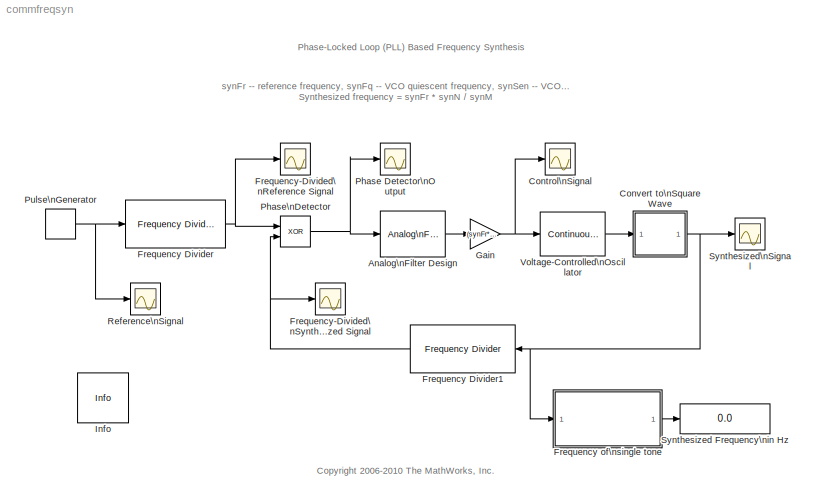
MODEL commfreqsyn
KIND model
CONFIG PreLoadFcn = synM = 3;    % frequency division ratio\nsynN = 10;   % frequency division ratio\nsynFr = 30e6;   % reference frequency\nsynFq = synFr;       % quiescent frequency\nsynSen = 40e6;   % VCO sensitivity
BLOCK [Reference] Analog\nFilter Design  REF=dsparch4/Analog\nFilter Design
  N = 1
  Ports = [1, 1]
  Rp = 2
  Rs = 40
  SID = 1
  SourceBlock = dsparch4/Analog\nFilter Design
  SourceType = Analog Filter Design
  Whi = 80
  Wlo = synFr/synM/10
  filttype = Lowpass
  method = Butterworth
BLOCK [Scope] Control\nSignal
  DataFormat = StructureWithTime
  Floating = off
  LimitDataPoints = off
  NumInputPorts = 1
  Ports = [1]
  SID = 2
  SampleTime = 0
  SaveName = ScopeData1
  ShowLegends = off
  TimeRange = 5e-005
  YMax = 2.5
  YMin = 0
  ZoomMode = xonly
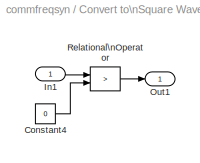
BLOCK [SubSystem] Convert to\nSquare Wave
  FunctionWithSeparateData = off
  MaskHideContents = off
  MinAlgLoopOccurrences = off
  Opaque = off
  Ports = [1, 1]
  PropExecContextOutsideSubsystem = off
  RTWSystemCode = Auto
  RequestExecContextInheritance = off
  SID = 3
BLOCK [Constant] Convert to\nSquare Wave/Constant4
  SID = 5
  Value = 0
BLOCK [Inport] Convert to\nSquare Wave/In1
  IconDisplay = Port number
  SID = 4
BLOCK [Outport] Convert to\nSquare Wave/Out1
  IconDisplay = Port number
  SID = 7
BLOCK [RelationalOperator] Convert to\nSquare Wave/Relational\nOperator
  Operator = >
  Ports = [2, 1]
  SID = 6
BLOCK [Reference] Frequency Divider  REF=commblksprivate/Frequency Divider
  Ports = [1, 1]
  SID = 8
  SourceBlock = commblksprivate/Frequency Divider
  SourceType = Frequency Divider
  n = synM
BLOCK [Reference] Frequency Divider1  REF=commblksprivate/Frequency Divider
  Ports = [1, 1]
  SID = 9
  SourceBlock = commblksprivate/Frequency Divider
  SourceType = Frequency Divider
  n = synN
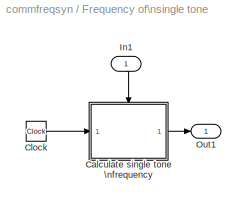
BLOCK [SubSystem] Frequency of\nsingle tone
  FunctionWithSeparateData = off
  MaskDisplay = disp('Single Tone\\nFrequency Estimator');
  MaskHideContents = off
  MaskIconFrame = on
  MaskIconOpaque = on
  MaskIconRotate = none
  MaskIconUnits = autoscale
  MaskPortRotate = default
  MinAlgLoopOccurrences = off
  Opaque = off
  Ports = [1, 1]
  PropExecContextOutsideSubsystem = off
  RTWSystemCode = Auto
  RequestExecContextInheritance = off
  SID = 10
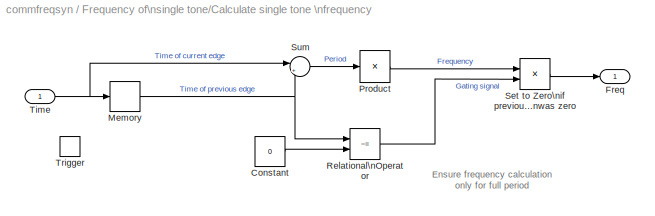
BLOCK [SubSystem] Frequency of\nsingle tone/Calculate single tone \nfrequency
  FunctionWithSeparateData = off
  MaskHideContents = off
  MinAlgLoopOccurrences = off
  Opaque = off
  Ports = [1, 1, 0, 1]
  PropExecContextOutsideSubsystem = off
  RTWSystemCode = Auto
  RequestExecContextInheritance = off
  SID = 12
  TreatAsAtomicUnit = on
BLOCK [Constant] Frequency of\nsingle tone/Calculate single tone \nfrequency/Constant
  SID = 15
  Value = 0
BLOCK [Outport] Frequency of\nsingle tone/Calculate single tone \nfrequency/Freq
  IconDisplay = Port number
  InitialOutput = 0
  SID = 21
BLOCK [Memory] Frequency of\nsingle tone/Calculate single tone \nfrequency/Memory
  InheritSampleTime = on
  SID = 16
BLOCK [Product] Frequency of\nsingle tone/Calculate single tone \nfrequency/Product
  Inputs = /
  Ports = [1, 1]
  RndMeth = Floor
  SID = 17
BLOCK [RelationalOperator] Frequency of\nsingle tone/Calculate single tone \nfrequency/Relational\nOperator
  Operator = ~=
  Ports = [2, 1]
  SID = 18
BLOCK [Product] Frequency of\nsingle tone/Calculate single tone \nfrequency/Set to Zero\nif previous time\nwas zero
  Ports = [2, 1]
  RndMeth = Floor
  SID = 19
BLOCK [Sum] Frequency of\nsingle tone/Calculate single tone \nfrequency/Sum
  IconShape = round
  Inputs = |+-
  Ports = [2, 1]
  SID = 20
BLOCK [Inport] Frequency of\nsingle tone/Calculate single tone \nfrequency/Time
  IconDisplay = Port number
  SID = 13
BLOCK [TriggerPort] Frequency of\nsingle tone/Calculate single tone \nfrequency/Trigger
  Ports = []
  SID = 14
  ZeroCross = off
BLOCK [Clock] Frequency of\nsingle tone/Clock
  Decimation = 1
  SID = 22
BLOCK [Inport] Frequency of\nsingle tone/In1
  IconDisplay = Port number
  SID = 11
BLOCK [Outport] Frequency of\nsingle tone/Out1
  IconDisplay = Port number
  SID = 23
BLOCK [Scope] Frequency-Divided\nReference Signal
  DataFormat = StructureWithTime
  Floating = off
  NumInputPorts = 1
  Ports = [1]
  SID = 24
  SampleTime = 0
  SaveName = ScopeData5
  ShowLegends = off
  TimeRange = 2e-007
  YMax = 2
  YMin = -1
BLOCK [Scope] Frequency-Divided\nSynthesized Signal
  DataFormat = StructureWithTime
  Floating = off
  NumInputPorts = 1
  Ports = [1]
  SID = 25
  SampleTime = 0
  SaveName = ScopeData4
  ShowLegends = off
  TimeRange = 2e-007
  YMax = 2
  YMin = -1
BLOCK [Gain] Gain
  Gain = (synFr*synN/synM - synFq) * 2 / synSen
  SID = 26
BLOCK [Reference] Info  REF=commblksprivate/Info
  FunctionWithSeparateData = off
  GeneratePreprocessorConditionals = off
  Ports = []
  RTWMemSecDataConstants = Inherit from model
  RTWMemSecDataInternal = Inherit from model
  RTWMemSecDataParameters = Inherit from model
  RTWMemSecFuncExecute = Inherit from model
  RTWMemSecFuncInitTerm = Inherit from model
  SID = 27
  ShowPortLabels = FromPortIcon
  SourceBlock = commblksprivate/Info
  SourceType = Info
  SystemSampleTime = -1
BLOCK [Scope] Phase Detector\nOutput
  DataFormat = StructureWithTime
  Floating = off
  NumInputPorts = 1
  Ports = [1]
  SID = 29
  SampleTime = 0
  SaveName = ScopeData6
  ShowLegends = off
  TimeRange = 2e-007
  YMax = 2
  YMin = -1
BLOCK [Logic] Phase\nDetector
  Operator = XOR
  Ports = [2, 1]
  SID = 28
BLOCK [DiscretePulseGenerator] Pulse\nGenerator
  Period = 1/synFr
  Ports = [0, 1]
  PulseType = Time based
  PulseWidth = 50
  SID = 30
BLOCK [Scope] Reference\nSignal
  DataFormat = StructureWithTime
  Floating = off
  NumInputPorts = 1
  Ports = [1]
  SID = 31
  SampleTime = 0
  ShowLegends = off
  TimeRange = 1e-007
  YMax = 2
  YMin = -1
BLOCK [Display] Synthesized Frequency\nin Hz
  Decimation = 1
  Lockdown = off
  Ports = [1]
  SID = 33
BLOCK [Scope] Synthesized\nSignal
  DataFormat = StructureWithTime
  Floating = off
  MaxDataPoints = 50000
  NumInputPorts = 1
  Ports = [1]
  SID = 32
  SampleTime = 0
  SaveName = ScopeData2
  ShowLegends = off
  TimeRange = 5e-008
  YMax = 2
  YMin = -1
  ZoomMode = xonly
BLOCK [Reference] Voltage-Controlled\nOscillator  REF=commsynccomp2/Continuous-Time\nVCO
  Ac = 1
  Fc = synFq
  Kc = synSen
  Ph = 0
  Ports = [1, 1]
  SID = 34
  SourceBlock = commsynccomp2/Continuous-Time\nVCO
  SourceType = Continuous-Time VCO
ANNOTATION (root): <copyright redacted>
ANNOTATION (root): Phase-Locked Loop (PLL) Based Frequency Synthesis
ANNOTATION (root): synFr -- reference frequency, synFq -- VCO quiescent frequency, synSen -- VCO sensitivity\nSynthesized frequency = synFr * synN / synM
ANNOTATION Frequency of\nsingle tone/Calculate single tone \nfrequency: Ensure frequency calculation\nonly for full period
LINE Analog\nFilter Design:1 -> Gain:1
LINE Convert to\nSquare Wave/Constant4:1 -> Convert to\nSquare Wave/Relational\nOperator:2
LINE Convert to\nSquare Wave/In1:1 -> Convert to\nSquare Wave/Relational\nOperator:1
LINE Convert to\nSquare Wave/Relational\nOperator:1 -> Convert to\nSquare Wave/Out1:1
NET Convert to\nSquare Wave:1 -> Frequency Divider1:1, Frequency of\nsingle tone:1, Synthesized\nSignal:1
NET Frequency Divider1:1 -> Frequency-Divided\nSynthesized Signal:1, Phase\nDetector:2
NET Frequency Divider:1 -> Frequency-Divided\nReference Signal:1, Phase\nDetector:1
LINE Frequency of\nsingle tone/Calculate single tone \nfrequency/Constant:1 -> Frequency of\nsingle tone/Calculate single tone \nfrequency/Relational\nOperator:2
NET Frequency of\nsingle tone/Calculate single tone \nfrequency/Memory:1 -> Frequency of\nsingle tone/Calculate single tone \nfrequency/Relational\nOperator:1, Frequency of\nsingle tone/Calculate single tone \nfrequency/Sum:2
LINE Frequency of\nsingle tone/Calculate single tone \nfrequency/Product:1 -> Frequency of\nsingle tone/Calculate single tone \nfrequency/Set to Zero\nif previous time\nwas zero:1
LINE Frequency of\nsingle tone/Calculate single tone \nfrequency/Relational\nOperator:1 -> Frequency of\nsingle tone/Calculate single tone \nfrequency/Set to Zero\nif previous time\nwas zero:2
LINE Frequency of\nsingle tone/Calculate single tone \nfrequency/Set to Zero\nif previous time\nwas zero:1 -> Frequency of\nsingle tone/Calculate single tone \nfrequency/Freq:1
LINE Frequency of\nsingle tone/Calculate single tone \nfrequency/Sum:1 -> Frequency of\nsingle tone/Calculate single tone \nfrequency/Product:1
NET Frequency of\nsingle tone/Calculate single tone \nfrequency/Time:1 -> Frequency of\nsingle tone/Calculate single tone \nfrequency/Memory:1, Frequency of\nsingle tone/Calculate single tone \nfrequency/Sum:1
LINE Frequency of\nsingle tone/Calculate single tone \nfrequency:1 -> Frequency of\nsingle tone/Out1:1
LINE Frequency of\nsingle tone/Clock:1 -> Frequency of\nsingle tone/Calculate single tone \nfrequency:1
LINE Frequency of\nsingle tone/In1:1 -> Frequency of\nsingle tone/Calculate single tone \nfrequency:trigger
LINE Frequency of\nsingle tone:1 -> Synthesized Frequency\nin Hz:1
NET Gain:1 -> Control\nSignal:1, Voltage-Controlled\nOscillator:1
NET Phase\nDetector:1 -> Analog\nFilter Design:1, Phase Detector\nOutput:1
NET Pulse\nGenerator:1 -> Frequency Divider:1, Reference\nSignal:1
LINE Voltage-Controlled\nOscillator:1 -> Convert to\nSquare Wave:1
note: NET lines group one-source signal fan-out (src -> all destinations, sorted); 1:1 wires keep LINE
